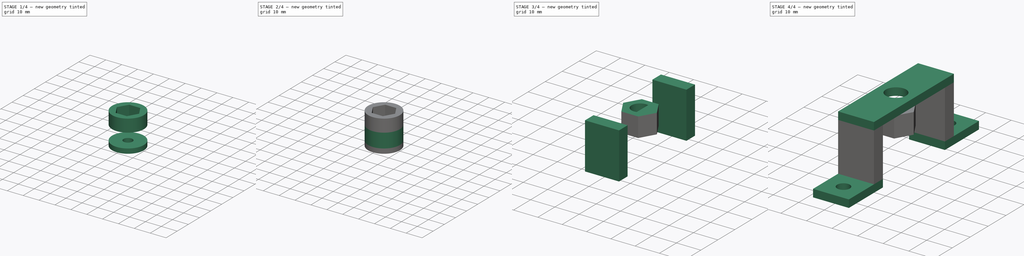
[diagram: build sequence overview — one tinted view per stage of 4, left to right]
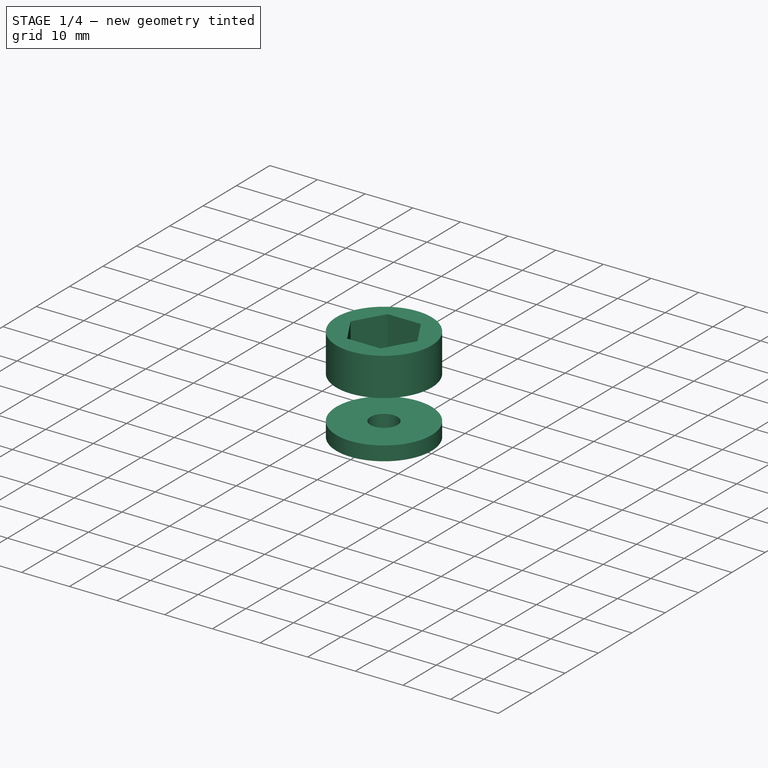
[diagram: stage 1 of 4 — iso view after this stage's code; geometry added in this stage tinted green]
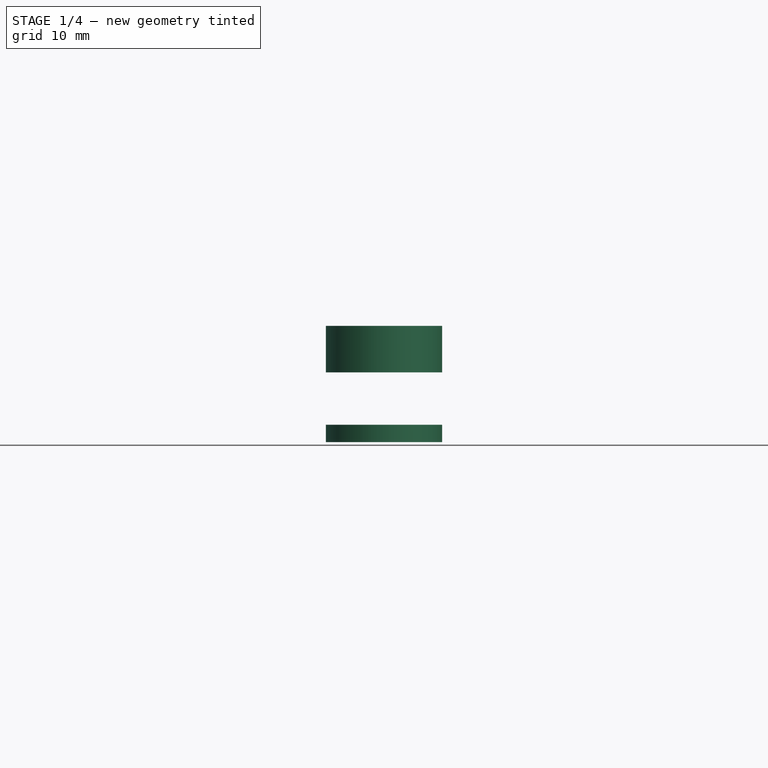
[diagram: stage 1 of 4 — front view after this stage's code; geometry added in this stage tinted green]
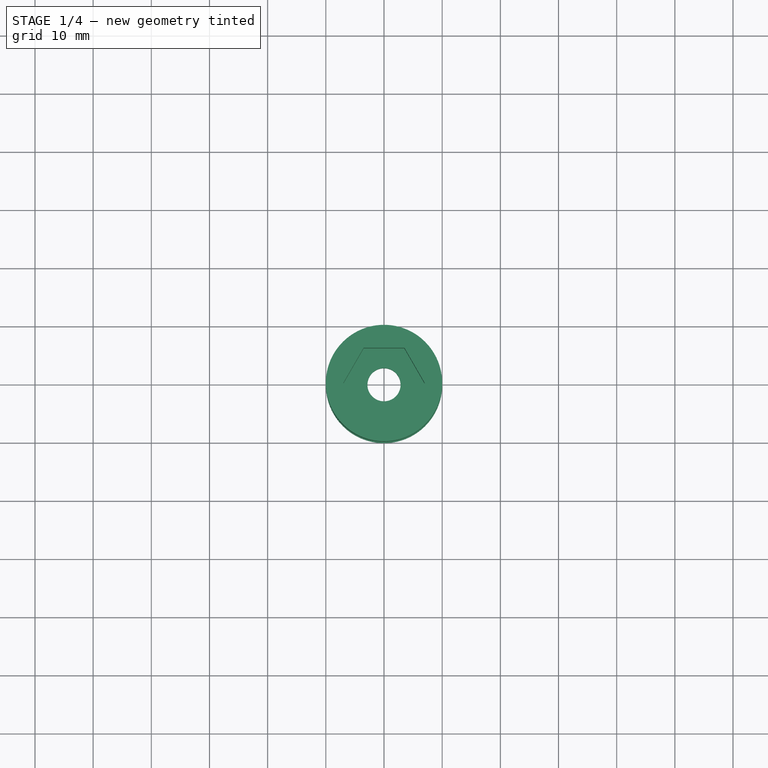
[diagram: stage 1 of 4 — top view after this stage's code; geometry added in this stage tinted green]
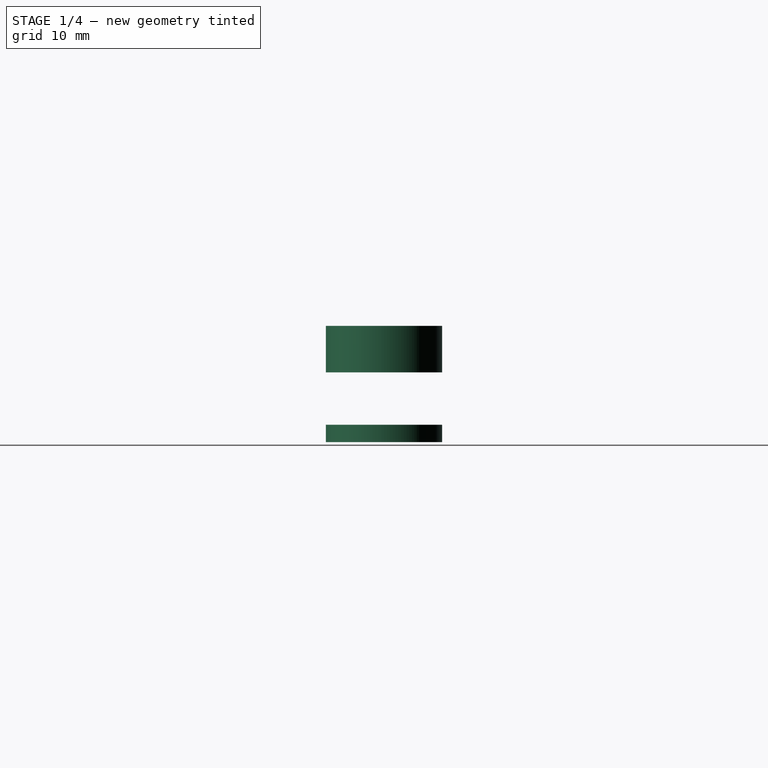
[diagram: stage 1 of 4 — right view after this stage's code; geometry added in this stage tinted green]
FCSTD DOCUMENT  (FreeCAD 0.20R29177 +426 (Git))
Label: CartEncoderMount
License: All rights reserved
LicenseURL: http://en.wikipedia.org/wiki/All_rights_reserved
objects: Sketcher::SketchObject×7, Part::Extrusion×7, Part::MultiFuse×2
note: 16 computed .brp shape members not serialized (recipe doc carries the construction recipe); baked Part::Feature solids carry a one-line shape summary decoded from their .brp

FEATURE [Sketcher::SketchObject] Sketch
  FullyConstrained = true
  sketch-geometry (2):
    g0: Circle CenterX=0 CenterY=0 CenterZ=0 NormalX=0 NormalY=0 NormalZ=1 AngleXU=0 Radius=10
    g1: Circle CenterX=0 CenterY=0 CenterZ=0 NormalX=0 NormalY=0 NormalZ=1 AngleXU=0 Radius=2.85
  constraints (4):
    c: Coincident(g0,g-1)
    c: Coincident(g1,g0)
    c: Diameter(g1) = 5.7
    c: Diameter(g0) = 20
FEATURE [Part::Extrusion] Extrude  label="P1Base"
  Base = -> Sketch
  Dir = (0,0,1)
  DirMode = 2
  FaceMakerClass = Part::FaceMakerBullseye
  LengthFwd = 3
  LengthRev = 0
  Solid = true
  Symmetric = false
FEATURE [Sketcher::SketchObject] Sketch007
  FullyConstrained = false
  MapMode = 5
  Placement = pos=(0,0,12) rot=(0,0,1;0rad)
  sketch-geometry (9):
    g0: Circle CenterX=1.99e-14 CenterY=2.2088e-12 CenterZ=0 NormalX=0 NormalY=0 NormalZ=1 AngleXU=0 Radius=10
    g1: Circle CenterX=1.99e-14 CenterY=2.2088e-12 CenterZ=0 NormalX=0 NormalY=0 NormalZ=1 AngleXU=0 Radius=7
    g2: LineSegment StartX=3.5 StartY=6.06218 StartZ=0 EndX=-3.5 EndY=6.06218 EndZ=0
    g3: LineSegment StartX=-3.5 StartY=6.06218 StartZ=0 EndX=-7 EndY=2.2098e-12 EndZ=0
    g4: LineSegment StartX=-7 StartY=2.2098e-12 StartZ=0 EndX=-3.5 EndY=-6.06218 EndZ=0
    g5: LineSegment StartX=-3.5 StartY=-6.06218 StartZ=0 EndX=3.5 EndY=-6.06218 EndZ=0
    g6: LineSegment StartX=3.5 StartY=-6.06218 StartZ=0 EndX=7 EndY=2.208e-12 EndZ=0
    g7: LineSegment StartX=7 StartY=2.208e-12 StartZ=0 EndX=3.5 EndY=6.06218 EndZ=0
    g8: Circle CenterX=1.99e-14 CenterY=2.2088e-12 CenterZ=0 NormalX=0 NormalY=0 NormalZ=1 AngleXU=0 Radius=7
  constraints (19):
    c: Coincident(g1,g0)
    c: Diameter(g1) = 14
    c: Diameter(g0) = 20
    c: Coincident(g2,g3)
    c: Coincident(g3,g4)
    c: Coincident(g4,g5)
    c: Coincident(g5,g6)
    c: Coincident(g6,g7)
    c: Coincident(g7,g2)
    c: Equal(g2, g3-g7) x5
    c: PointOnObject(g2,g8)
    c: PointOnObject(g3,g8)
    c: PointOnObject(g4,g8)
    c: PointOnObject(g5,g8)
    c: PointOnObject(g6,g8)
    c: PointOnObject(g7,g8)
    c: Coincident(g8,g0)
    c: PointOnObject(g7,g1)
    c: Perpendicular(g-2,g2)
FEATURE [Part::Extrusion] Extrude006  label="P1HexCylinderBig"
  Base = -> Sketch007
  Dir = (0,0,1)
  DirMode = 2
  FaceMakerClass = Part::FaceMakerBullseye
  LengthFwd = 8
  LengthRev = 0
  Solid = true
  Symmetric = false
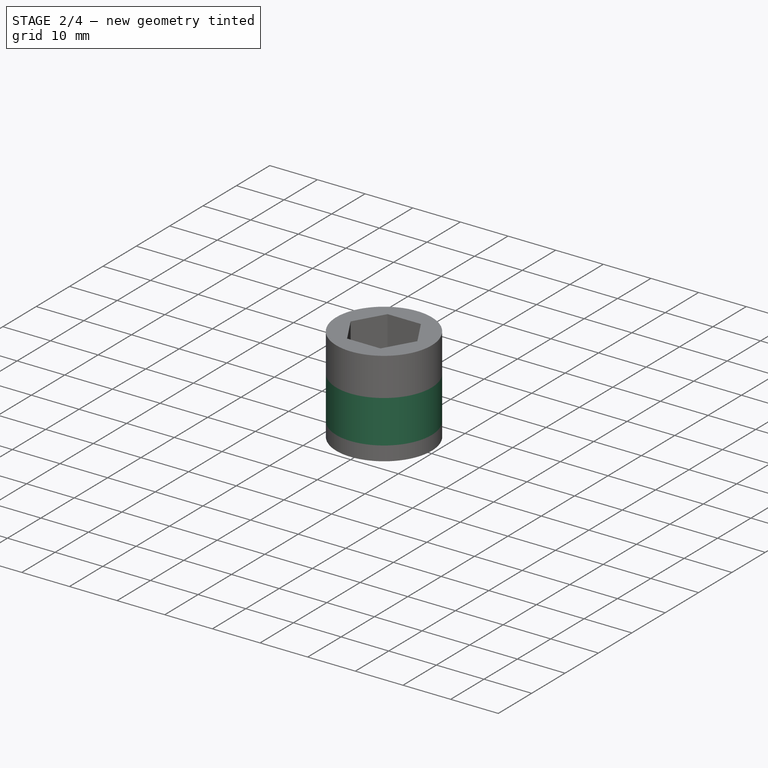
[diagram: stage 2 of 4 — iso view after this stage's code; geometry added in this stage tinted green]
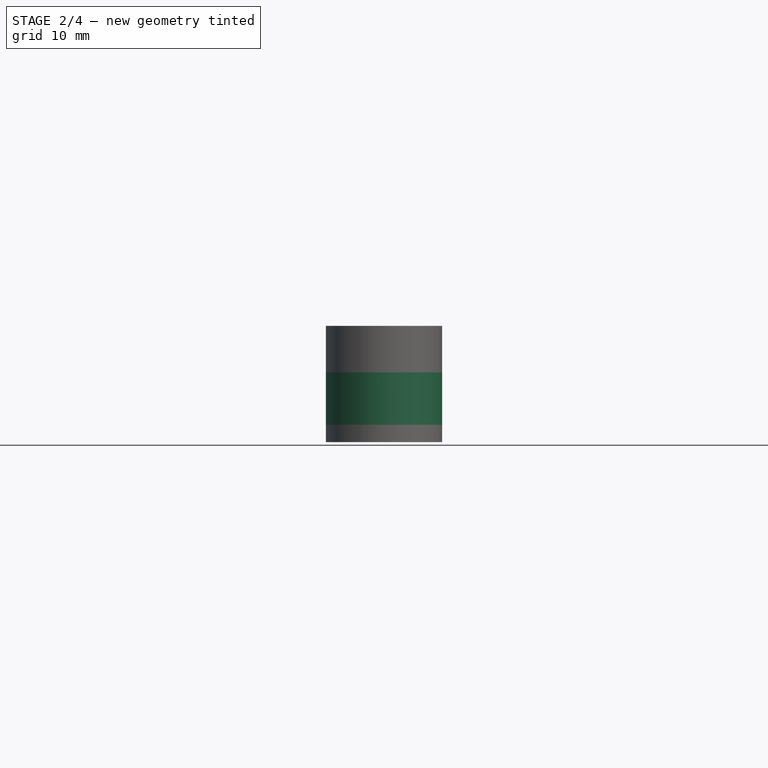
[diagram: stage 2 of 4 — front view after this stage's code; geometry added in this stage tinted green]
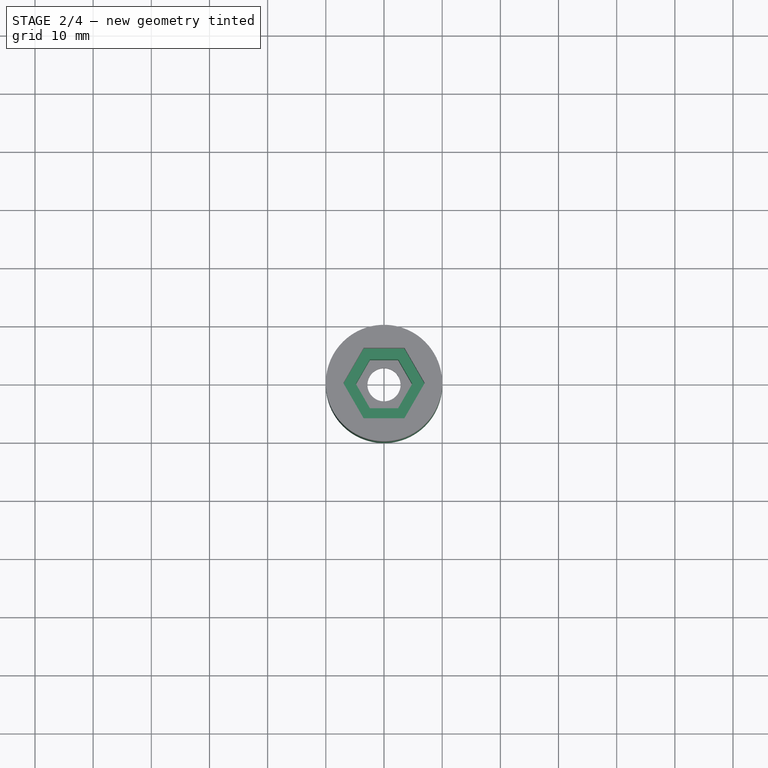
[diagram: stage 2 of 4 — top view after this stage's code; geometry added in this stage tinted green]
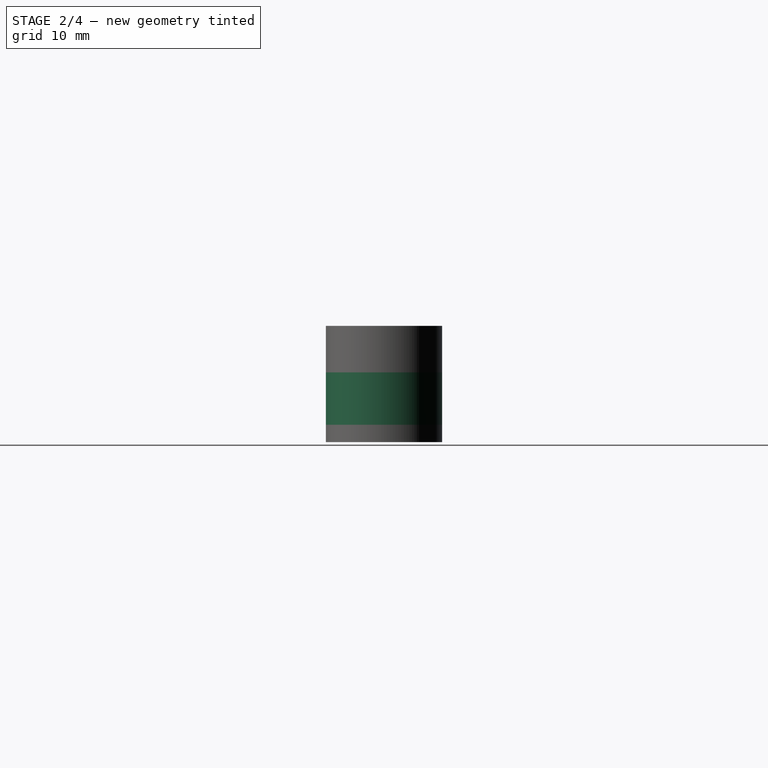
[diagram: stage 2 of 4 — right view after this stage's code; geometry added in this stage tinted green]
FEATURE [Sketcher::SketchObject] Sketch001
  ExternalGeometry = -> [Extrude]
  FullyConstrained = true
  MapMode = 5
  Placement = pos=(0,0,3) rot=(0,0,1;0rad)
  Support = -> [Extrude]
  sketch-geometry (9):
    g0: LineSegment StartX=2.42487 StartY=4.2 StartZ=0 EndX=-2.42487 EndY=4.2 EndZ=0
    g1: LineSegment StartX=-2.42487 StartY=4.2 StartZ=0 EndX=-4.84974 EndY=2.9701e-12 EndZ=0
    g2: LineSegment StartX=-4.84974 StartY=2.9698e-12 StartZ=0 EndX=-2.42487 EndY=-4.2 EndZ=0
    g3: LineSegment StartX=-2.42487 StartY=-4.2 StartZ=0 EndX=2.42487 EndY=-4.2 EndZ=0
    g4: LineSegment StartX=2.42487 StartY=-4.2 StartZ=0 EndX=4.84974 EndY=3.2419e-12 EndZ=0
    g5: LineSegment StartX=4.84974 StartY=3.2419e-12 StartZ=0 EndX=2.42487 EndY=4.2 EndZ=0
    g6: Circle CenterX=1.99e-14 CenterY=2.2088e-12 CenterZ=0 NormalX=0 NormalY=0 NormalZ=1 AngleXU=0 Radius=4.84974
    g7: LineSegment StartX=-2.42487 StartY=4.2 StartZ=0 EndX=-2.42487 EndY=-4.2 EndZ=0
    g8: Circle CenterX=1.99e-14 CenterY=2.2088e-12 CenterZ=0 NormalX=0 NormalY=0 NormalZ=1 AngleXU=0 Radius=10
  constraints (20):
    c: Coincident(g0,g1)
    c: Coincident(g1,g2)
    c: Coincident(g2,g3)
    c: Coincident(g3,g4)
    c: Coincident(g4,g5)
    c: Coincident(g5,g0)
    c: Equal(g0, g1-g5) x5
    c: PointOnObject(g0,g6)
    c: PointOnObject(g1,g6)
    c: PointOnObject(g2,g6)
    c: PointOnObject(g3,g6)
    c: PointOnObject(g4,g6)
    c: PointOnObject(g5,g6)
    c: Coincident(g6,g-1)
    c: Coincident(g7,g0)
    c: Coincident(g7,g2)
    c: Vertical(g7)
    c: Distance(g7) = 8.4
    c: Coincident(g8,g6)
    c: Tangent(g8,g-3)
FEATURE [Part::Extrusion] Extrude001  label="P1HexCylinder"
  Base = -> Sketch001
  Dir = (0,0,1)
  DirMode = 2
  FaceMakerClass = Part::FaceMakerBullseye
  LengthFwd = 9
  LengthRev = 0
  Solid = true
  Symmetric = false
FEATURE [Part::MultiFuse] Fusion  label="P1"
  Shapes = -> [Extrude006,Extrude001,Extrude]
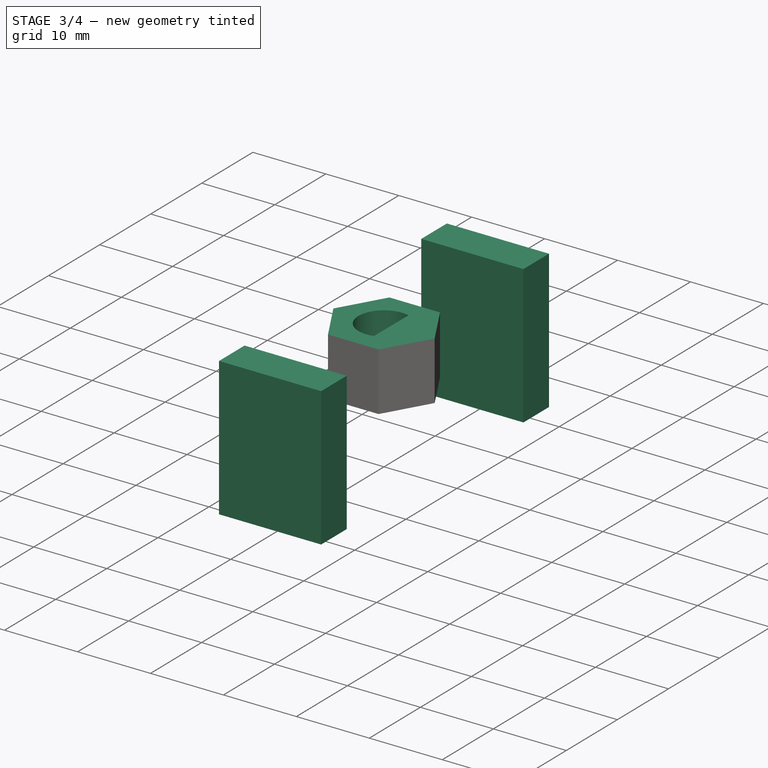
[diagram: stage 3 of 4 — iso view after this stage's code; geometry added in this stage tinted green]
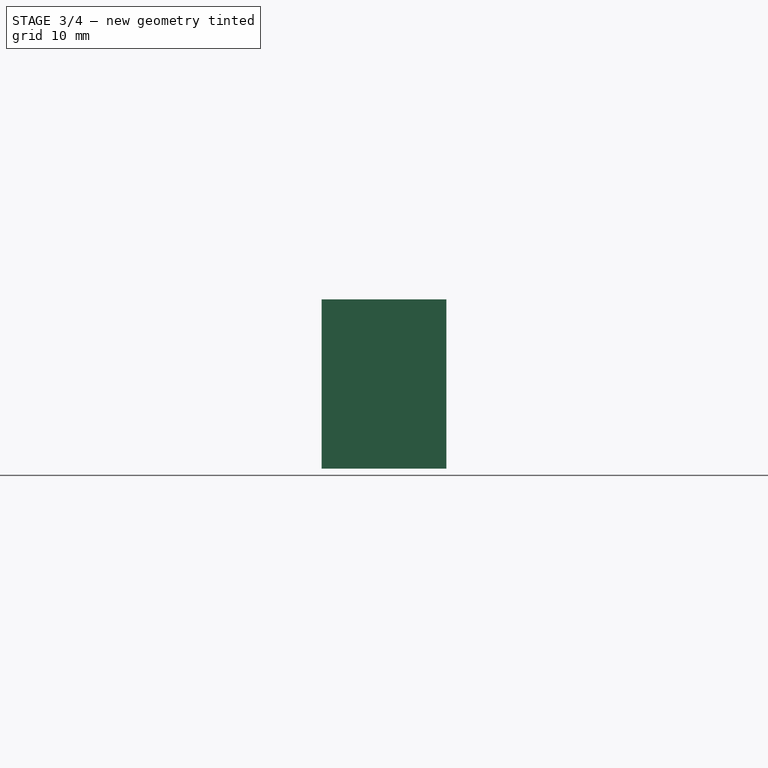
[diagram: stage 3 of 4 — front view after this stage's code; geometry added in this stage tinted green]
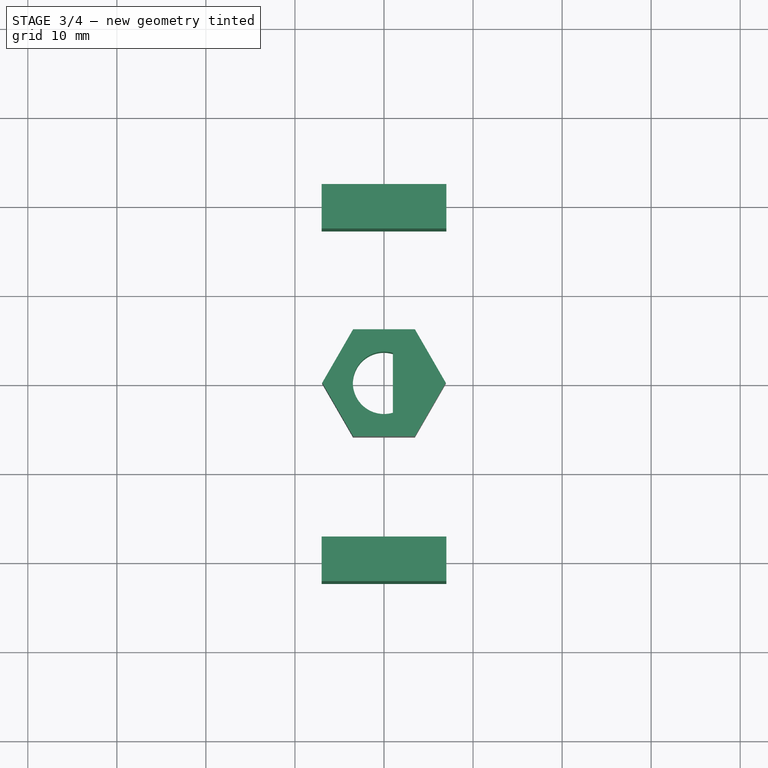
[diagram: stage 3 of 4 — top view after this stage's code; geometry added in this stage tinted green]
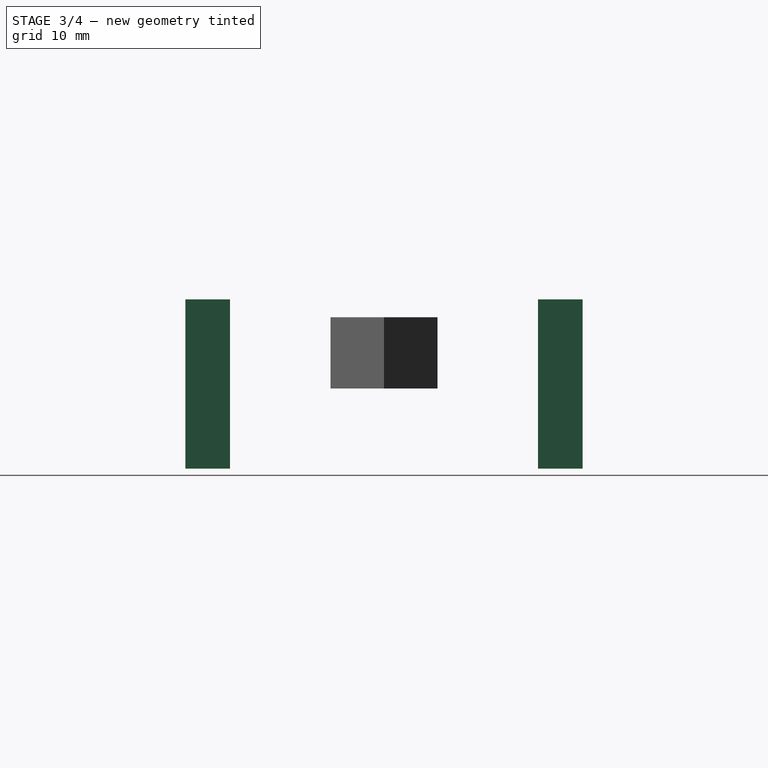
[diagram: stage 3 of 4 — right view after this stage's code; geometry added in this stage tinted green]
FEATURE [Sketcher::SketchObject] Sketch004
  FullyConstrained = true
  MapMode = 5
  Placement = pos=(0,0,0) rot=(1,0,0;3.14159rad)
  sketch-geometry (30):
    g0: LineSegment StartX=7 StartY=36.3 StartZ=0 EndX=0 EndY=36.3 EndZ=0
    g1: LineSegment StartX=0 StartY=36.3 StartZ=0 EndX=-7 EndY=36.3 EndZ=0
    g2: LineSegment StartX=-7 StartY=-36.3 StartZ=0 EndX=0 EndY=-36.3 EndZ=0
    g3: LineSegment StartX=0 StartY=-36.3 StartZ=0 EndX=7 EndY=-36.3 EndZ=0
    g4: LineSegment StartX=0 StartY=-36.3 StartZ=0 EndX=0 EndY=0 EndZ=0
    g5: LineSegment StartX=0 StartY=36.3 StartZ=0 EndX=0 EndY=0 EndZ=0
    g6: Circle CenterX=0 CenterY=29.3 CenterZ=0 NormalX=0 NormalY=0 NormalZ=1 AngleXU=0 Radius=2.5
    g7: Circle CenterX=0 CenterY=-29.3 CenterZ=0 NormalX=0 NormalY=0 NormalZ=1 AngleXU=0 Radius=2.5
    g8: LineSegment StartX=0 StartY=29.3 StartZ=0 EndX=0 EndY=36.3 EndZ=0
    g9: LineSegment StartX=0 StartY=-36.3 StartZ=0 EndX=0 EndY=-29.3 EndZ=0
    g10: LineSegment StartX=7 StartY=36.3 StartZ=0 EndX=-7 EndY=36.3 EndZ=0
    g11: LineSegment StartX=-7 StartY=36.3 StartZ=0 EndX=-7 EndY=22.3 EndZ=0
    g12: LineSegment StartX=-7 StartY=22.3 StartZ=0 EndX=7 EndY=22.3 EndZ=0
    g13: LineSegment StartX=7 StartY=22.3 StartZ=0 EndX=7 EndY=36.3 EndZ=0
    g14: Circle CenterX=0 CenterY=29.3 CenterZ=0 NormalX=0 NormalY=0 NormalZ=1 AngleXU=0 Radius=9.89949
    g15: LineSegment StartX=7 StartY=-36.3 StartZ=0 EndX=7 EndY=-22.3 EndZ=0
    g16: LineSegment StartX=7 StartY=-22.3 StartZ=0 EndX=-7 EndY=-22.3 EndZ=0
    g17: LineSegment StartX=-7 StartY=-22.3 StartZ=0 EndX=-7 EndY=-36.3 EndZ=0
    g18: LineSegment StartX=-7 StartY=-36.3 StartZ=0 EndX=7 EndY=-36.3 EndZ=0
    g19: Circle CenterX=0 CenterY=-29.3 CenterZ=0 NormalX=0 NormalY=0 NormalZ=1 AngleXU=0 Radius=9.89949
    g20: LineSegment StartX=-7 StartY=36.3 StartZ=0 EndX=-7 EndY=17.3 EndZ=0
    g21: LineSegment StartX=-7 StartY=17.3 StartZ=0 EndX=-7 EndY=-36.3 EndZ=0
    g22: LineSegment StartX=7 StartY=-36.3 StartZ=0 EndX=7 EndY=17.3 EndZ=0
    g23: LineSegment StartX=7 StartY=17.3 StartZ=0 EndX=7 EndY=36.3 EndZ=0
    g24: LineSegment StartX=-7 StartY=17.3 StartZ=0 EndX=7 EndY=17.3 EndZ=0
    g25: LineSegment StartX=-7 StartY=17.3 StartZ=0 EndX=-7 EndY=22.3 EndZ=0
    g26: LineSegment StartX=7 StartY=17.3 StartZ=0 EndX=7 EndY=22.3 EndZ=0
    g27: LineSegment StartX=-7 StartY=-22.3 StartZ=0 EndX=-7 EndY=-17.3 EndZ=0
    g28: LineSegment StartX=7 StartY=-22.3 StartZ=0 EndX=7 EndY=-17.3 EndZ=0
    g29: LineSegment StartX=-7 StartY=-17.3 StartZ=0 EndX=7 EndY=-17.3 EndZ=0
  constraints (78):
    c: Coincident(g3,g22)
    c: Coincident(g23,g0)
    c: Coincident(g1,g20)
    c: Coincident(g21,g2)
    c: Coincident(g0,g1)
    c: Horizontal(g0)
    c: Horizontal(g1)
    c: Coincident(g2,g3)
    c: Horizontal(g2)
    c: Horizontal(g3)
    c: Coincident(g4,g2)
    c: Coincident(g4,g-1)
    c: Vertical(g4)
    c: Coincident(g5,g0)
    c: Coincident(g5,g4)
    c: Vertical(g5)
    c: Equal(g0,g1)
    c: Equal(g5,g4)
    c: PointOnObject(g6,g5)
    c: PointOnObject(g7,g4)
    c: Diameter(g7) = 5
    c: Equal(g6,g7)
    c: Distance(g6,g7) = 58.6
    c: Distance(g1) = 7
    c: Coincident(g8,g6)
    c: Coincident(g8,g0)
    c: Distance(g8) = 7
    c: Coincident(g9,g2)
    c: Coincident(g9,g7)
    c: Distance(g9) = 7
    c: Coincident(g10,g11)
    c: Coincident(g11,g12)
    c: Coincident(g12,g13)
    c: Coincident(g13,g10)
    c: Equal(g10,g11)
    c: Equal(g10,g12)
    c: Equal(g10,g13)
    c: PointOnObject(g10,g14)
    c: PointOnObject(g11,g14)
    c: PointOnObject(g12,g14)
    c: PointOnObject(g13,g14)
    c: Coincident(g14,g6)
    c: Coincident(g13,g23)
    c: Coincident(g15,g16)
    c: Coincident(g16,g17)
    c: Coincident(g17,g18)
    c: Coincident(g18,g15)
    c: Equal(g15,g16)
    c: Equal(g15,g17)
    c: Equal(g15,g18)
    c: PointOnObject(g15,g19)
    c: PointOnObject(g16,g19)
    c: PointOnObject(g17,g19)
    c: PointOnObject(g18,g19)
    c: Coincident(g19,g7)
    c: Coincident(g18,g22)
    c: Coincident(g20,g21)
    c: Vertical(g20)
    c: Vertical(g21)
    c: Coincident(g22,g23)
    c: Vertical(g22)
    c: Vertical(g23)
    c: Coincident(g24,g20)
    c: Coincident(g24,g22)
    c: Horizontal(g24)
    c: Coincident(g25,g24)
    c: Coincident(g25,g11)
    c: Coincident(g26,g24)
    c: Coincident(g26,g12)
    c: Distance(g25) = 5
    c: Coincident(g27,g16)
    c: PointOnObject(g27,g21)
    c: Coincident(g28,g15)
    c: PointOnObject(g28,g22)
    c: Coincident(g29,g27)
    c: Coincident(g29,g28)
    c: Horizontal(g29)
    c: Equal(g27,g25)
FEATURE [Part::Extrusion] Extrude003  label="P3Base"
  Base = -> Sketch004
  Dir = (0,0,-1)
  DirMode = 2
  FaceMakerClass = Part::FaceMakerBullseye
  LengthFwd = 0
  LengthRev = 3
  Solid = true
  Symmetric = false
FEATURE [Sketcher::SketchObject] Sketch005
  ExternalGeometry = -> [Extrude003]
  FullyConstrained = true
  MapMode = 45
  Placement = pos=(-3e-16,-7.4e-15,3) rot=(0,0,1;0rad)
  Support = -> [Extrude003]
  sketch-geometry (8):
    g0: LineSegment StartX=-7 StartY=22.3 StartZ=0 EndX=7 EndY=22.3 EndZ=0
    g1: LineSegment StartX=7 StartY=22.3 StartZ=0 EndX=7 EndY=17.3 EndZ=0
    g2: LineSegment StartX=7 StartY=17.3 StartZ=0 EndX=-7 EndY=17.3 EndZ=0
    g3: LineSegment StartX=-7 StartY=17.3 StartZ=0 EndX=-7 EndY=22.3 EndZ=0
    g4: LineSegment StartX=-7 StartY=-22.3 StartZ=0 EndX=7 EndY=-22.3 EndZ=0
    g5: LineSegment StartX=7 StartY=-22.3 StartZ=0 EndX=7 EndY=-17.3 EndZ=0
    g6: LineSegment StartX=7 StartY=-17.3 StartZ=0 EndX=-7 EndY=-17.3 EndZ=0
    g7: LineSegment StartX=-7 StartY=-17.3 StartZ=0 EndX=-7 EndY=-22.3 EndZ=0
  constraints (20):
    c: Coincident(g0,g1)
    c: Coincident(g1,g2)
    c: Coincident(g2,g3)
    c: Coincident(g3,g0)
    c: Horizontal(g0)
    c: Horizontal(g2)
    c: Vertical(g1)
    c: Vertical(g3)
    c: Coincident(g0,g-3)
    c: Coincident(g1,g-4)
    c: Coincident(g4,g5)
    c: Coincident(g5,g6)
    c: Coincident(g6,g7)
    c: Coincident(g7,g4)
    c: Horizontal(g4)
    c: Horizontal(g6)
    c: Vertical(g5)
    c: Vertical(g7)
    c: Coincident(g4,g-6)
    c: Coincident(g5,g-5)
FEATURE [Part::Extrusion] Extrude004  label="P3Walls"
  Base = -> Sketch005
  Dir = (0,0,1)
  DirMode = 2
  FaceMakerClass = Part::FaceMakerBullseye
  LengthFwd = 19
  LengthRev = 0
  Solid = true
  Symmetric = false
FEATURE [Sketcher::SketchObject] Sketch008
  ExternalGeometry = -> [Fusion]
  FullyConstrained = true
  MapMode = 5
  Placement = pos=(0,0,20) rot=(0,0,1;0rad)
  Support = -> [Fusion]
  sketch-geometry (12):
    g0: LineSegment StartX=3.47113 StartY=6.01218 StartZ=0 EndX=-3.47113 EndY=6.01218 EndZ=0
    g1: LineSegment StartX=-3.47113 StartY=6.01218 StartZ=0 EndX=-6.94226 EndY=-9e-16 EndZ=0
    g2: LineSegment StartX=-6.94226 StartY=-9e-16 StartZ=0 EndX=-3.47113 EndY=-6.01218 EndZ=0
    g3: LineSegment StartX=-3.47113 StartY=-6.01218 StartZ=0 EndX=3.47113 EndY=-6.01218 EndZ=0
    g4: LineSegment StartX=3.47113 StartY=-6.01218 StartZ=0 EndX=6.94226 EndY=0 EndZ=0
    g5: LineSegment StartX=6.94226 StartY=0 StartZ=0 EndX=3.47113 EndY=6.01218 EndZ=0
    g6: Circle CenterX=0 CenterY=0 CenterZ=0 NormalX=0 NormalY=0 NormalZ=1 AngleXU=0 Radius=6.94226
    g7: LineSegment StartX=-3.47113 StartY=6.01218 StartZ=0 EndX=-3.47113 EndY=6.06218 EndZ=0
    g8: Circle CenterX=0 CenterY=0 CenterZ=0 NormalX=0 NormalY=0 NormalZ=1 AngleXU=0 Radius=3.5
    g9: LineSegment StartX=1 StartY=3.3541 StartZ=0 EndX=1 EndY=-3.3541 EndZ=0
    g10: ArcOfCircle CenterX=0 CenterY=0 CenterZ=0 NormalX=0 NormalY=0 NormalZ=1 AngleXU=0 Radius=3.5 StartAngle=1.28104 EndAngle=5.00214
    g11: LineSegment StartX=-3.5 StartY=0 StartZ=0 EndX=1 EndY=0 EndZ=0
  constraints (31):
    c: Coincident(g0,g1)
    c: Coincident(g1,g2)
    c: Coincident(g2,g3)
    c: Coincident(g3,g4)
    c: Coincident(g4,g5)
    c: Coincident(g5,g0)
    c: Equal(g0, g1-g5) x5
    c: PointOnObject(g0,g6)
    c: PointOnObject(g1,g6)
    c: PointOnObject(g2,g6)
    c: PointOnObject(g3,g6)
    c: PointOnObject(g4,g6)
    c: PointOnObject(g5,g6)
    c: Coincident(g6,g-1)
    c: Perpendicular(g-2,g0)
    c: Coincident(g7,g0)
    c: PointOnObject(g7,g-3)
    c: Vertical(g7)
    c: Distance(g7) = 0.05
    c: Coincident(g8,g6)
    c: Diameter(g8) = 7
    c: PointOnObject(g9,g8)
    c: Vertical(g9)
    c: Coincident(g10,g6)
    c: Coincident(g10,g9)
    c: Coincident(g10,g9)
    c: PointOnObject(g11,g10)
    c: PointOnObject(g11,g9)
    c: Horizontal(g11)
    c: PointOnObject(g11,g-1)
    c: Distance(g11) = 4.5
FEATURE [Part::Extrusion] Extrude007  label="P2"
  Base = -> Sketch008
  Dir = (0,0,1)
  DirMode = 2
  FaceMakerClass = Part::FaceMakerBullseye
  LengthFwd = 0
  LengthRev = 8
  Solid = true
  Symmetric = false
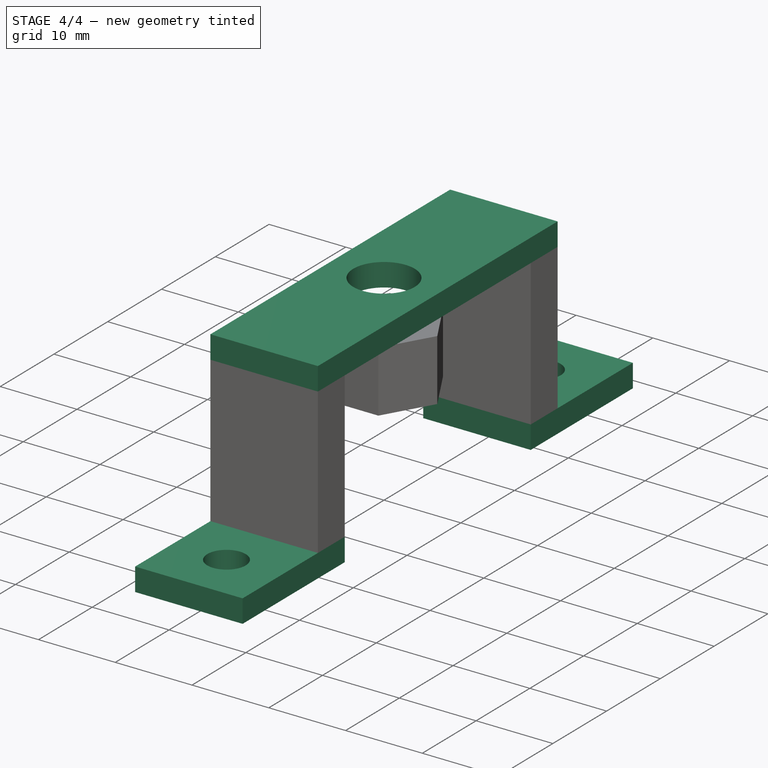
[diagram: stage 4 of 4 — iso view after this stage's code; geometry added in this stage tinted green]
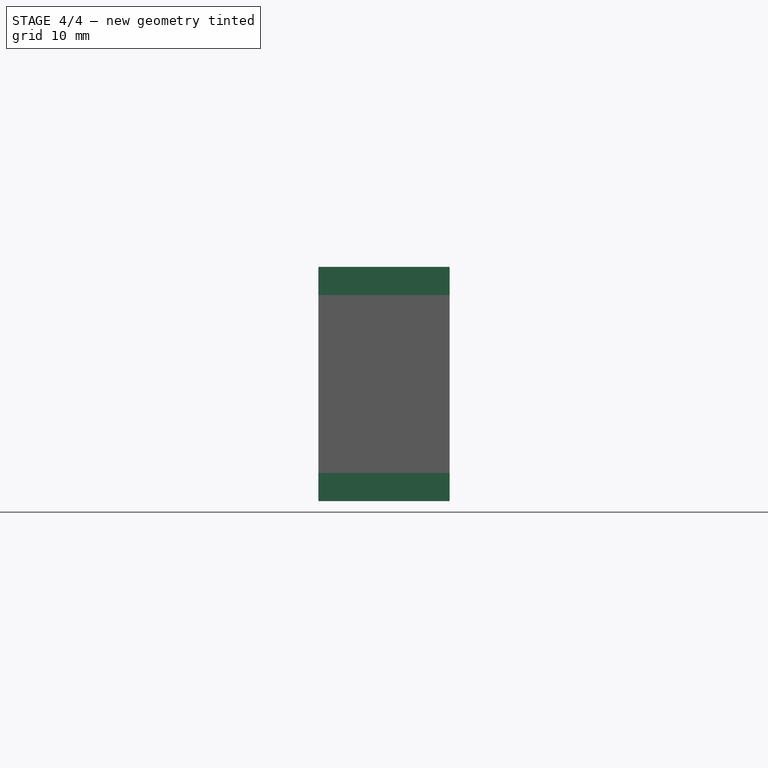
[diagram: stage 4 of 4 — front view after this stage's code; geometry added in this stage tinted green]
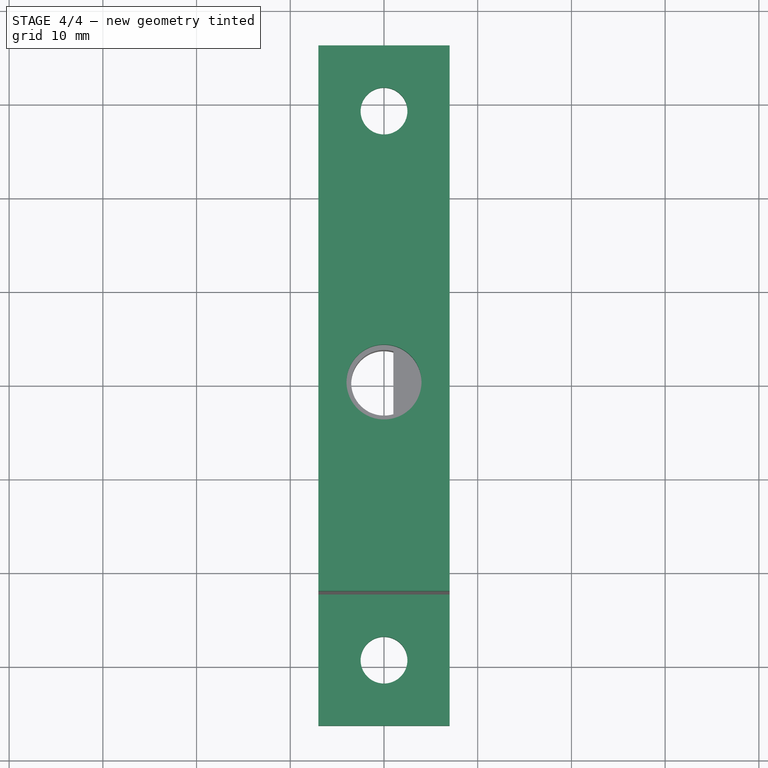
[diagram: stage 4 of 4 — top view after this stage's code; geometry added in this stage tinted green]
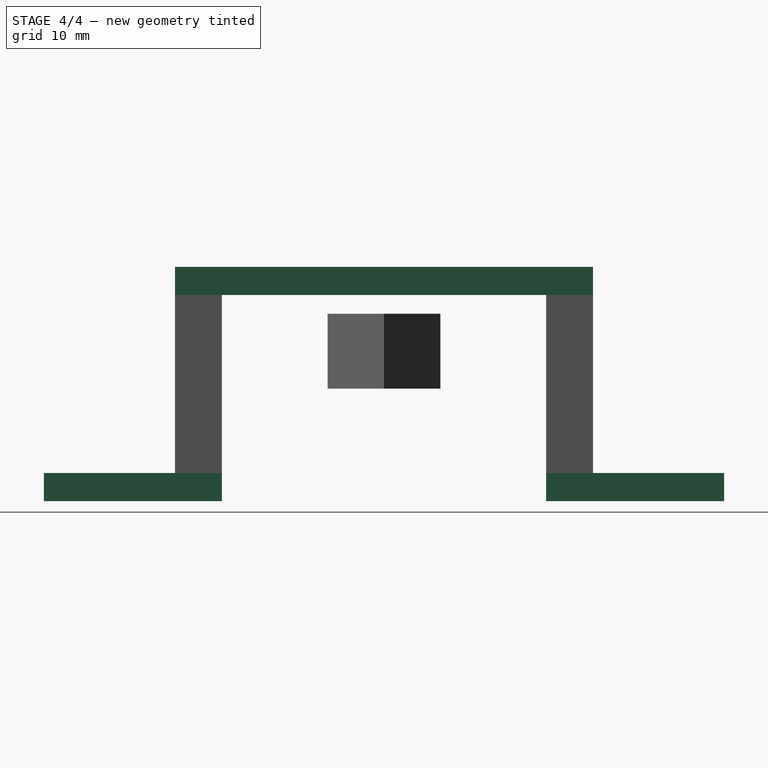
[diagram: stage 4 of 4 — right view after this stage's code; geometry added in this stage tinted green]
FEATURE [Sketcher::SketchObject] Sketch006
  ExternalGeometry = -> [Extrude004]
  FullyConstrained = true
  MapMode = 45
  Placement = pos=(-1e-16,0,22) rot=(0,0,1;0rad)
  Support = -> [Extrude004]
  sketch-geometry (5):
    g0: LineSegment StartX=-7 StartY=-22.3 StartZ=0 EndX=7 EndY=-22.3 EndZ=0
    g1: LineSegment StartX=7 StartY=-22.3 StartZ=0 EndX=7 EndY=22.3 EndZ=0
    g2: LineSegment StartX=7 StartY=22.3 StartZ=0 EndX=-7 EndY=22.3 EndZ=0
    g3: LineSegment StartX=-7 StartY=22.3 StartZ=0 EndX=-7 EndY=-22.3 EndZ=0
    g4: Circle CenterX=0 CenterY=0 CenterZ=0 NormalX=0 NormalY=0 NormalZ=1 AngleXU=0 Radius=4
  constraints (12):
    c: Coincident(g0,g1)
    c: Coincident(g1,g2)
    c: Coincident(g2,g3)
    c: Coincident(g3,g0)
    c: Horizontal(g0)
    c: Horizontal(g2)
    c: Vertical(g1)
    c: Vertical(g3)
    c: Coincident(g0,g-3)
    c: Coincident(g1,g-4)
    c: Coincident(g4,g-1)
    c: Diameter(g4) = 8
FEATURE [Part::Extrusion] Extrude005  label="P3Top"
  Base = -> Sketch006
  Dir = (0,0,1)
  DirMode = 2
  FaceMakerClass = Part::FaceMakerBullseye
  LengthFwd = 3
  LengthRev = 0
  Solid = true
  Symmetric = false
FEATURE [Part::MultiFuse] Fusion001  label="P3"
  Shapes = -> [Extrude005,Extrude003,Extrude004]
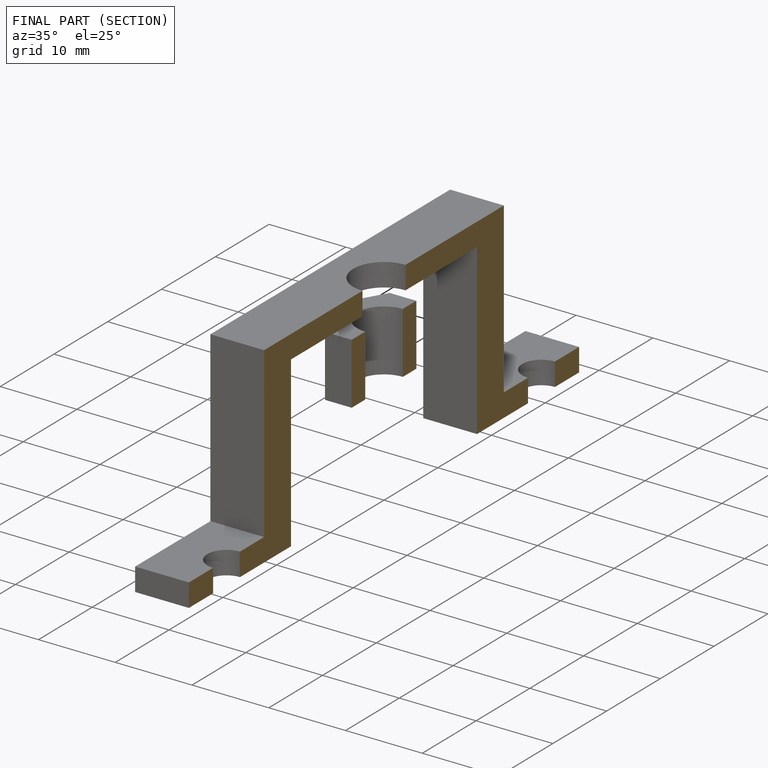
[diagram: finished part — half-section view (interior)]
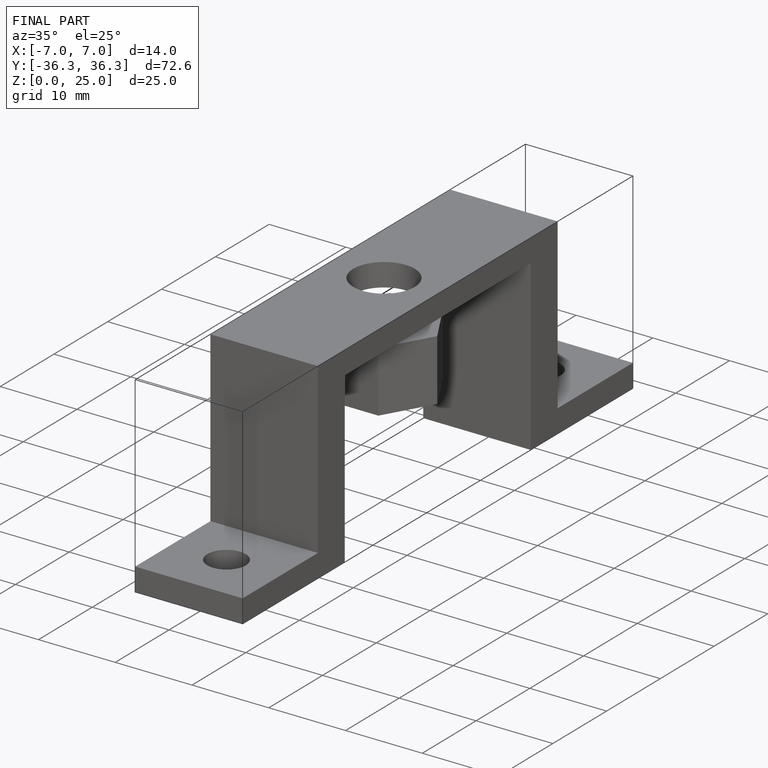
[diagram: finished part — iso view with bounding-box wireframe]
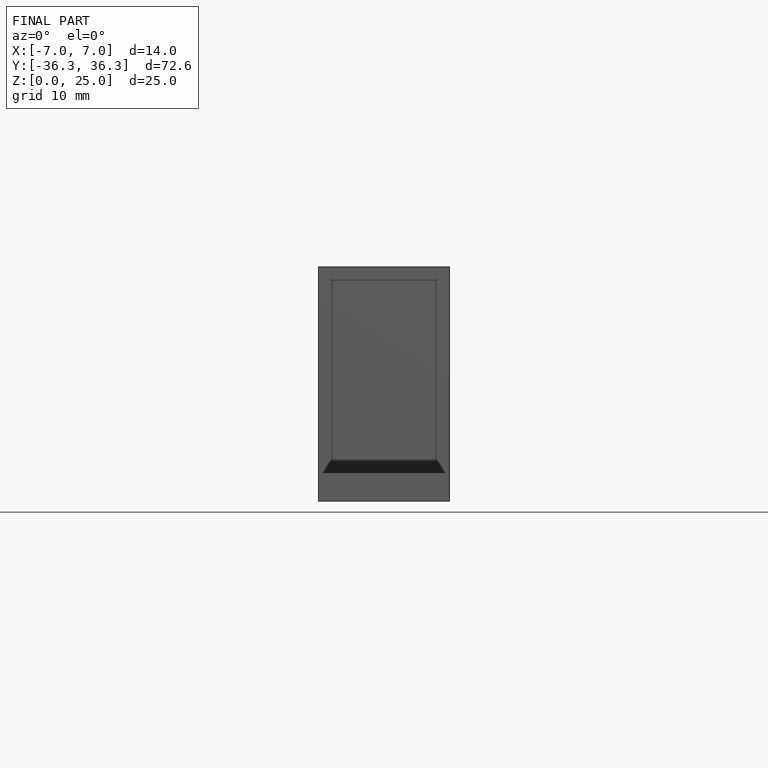
[diagram: finished part — front view with bounding-box wireframe]
